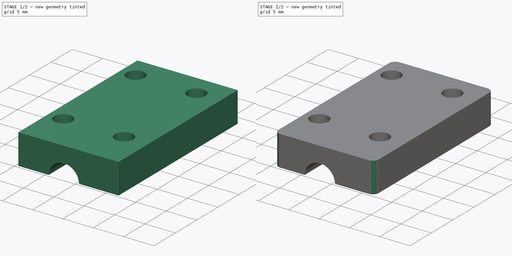
[diagram: build sequence overview — one tinted view per stage of 2, left to right]
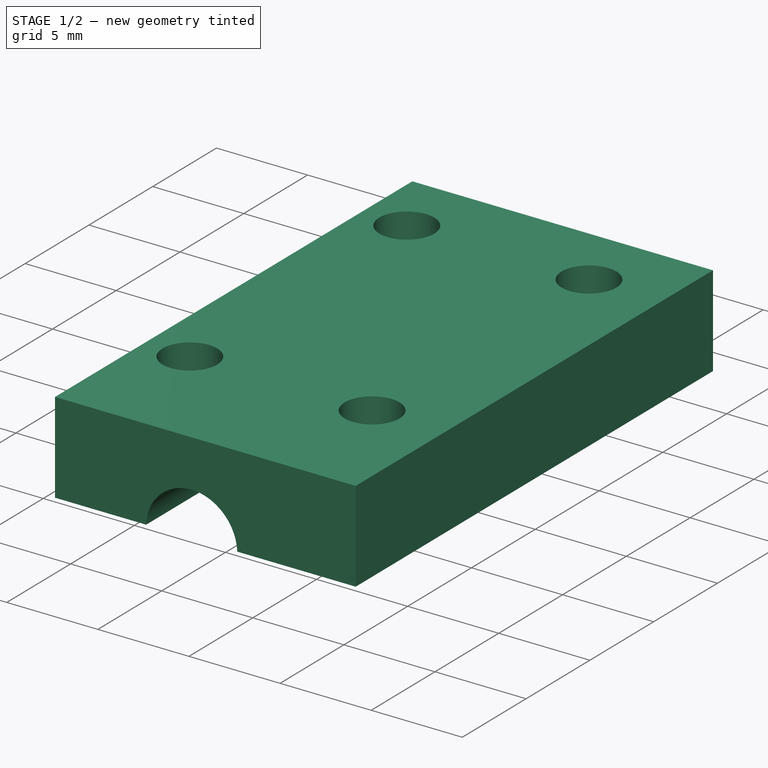
[diagram: stage 1 of 2 — iso view after this stage's code; geometry added in this stage tinted green]
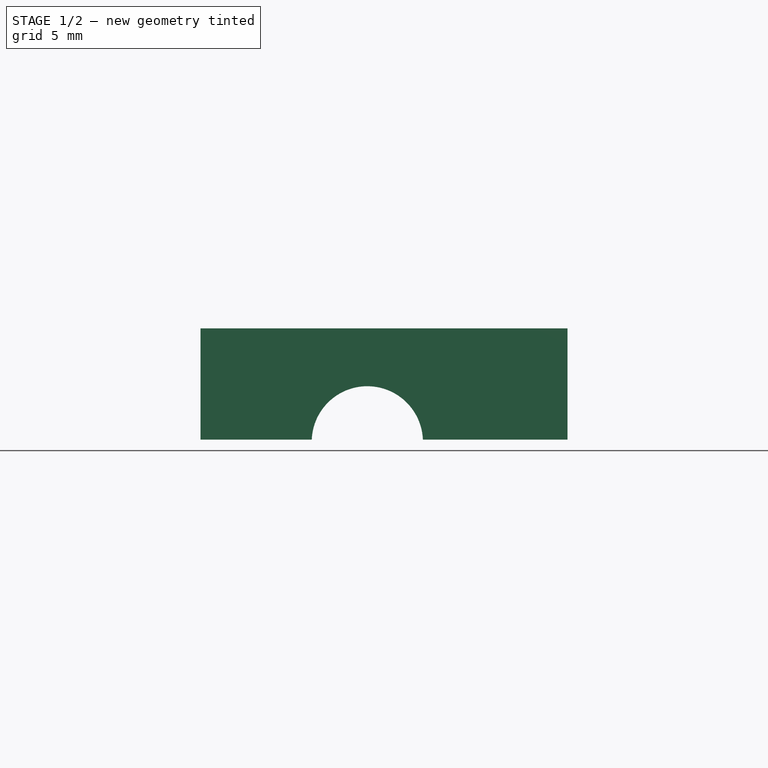
[diagram: stage 1 of 2 — front view after this stage's code; geometry added in this stage tinted green]
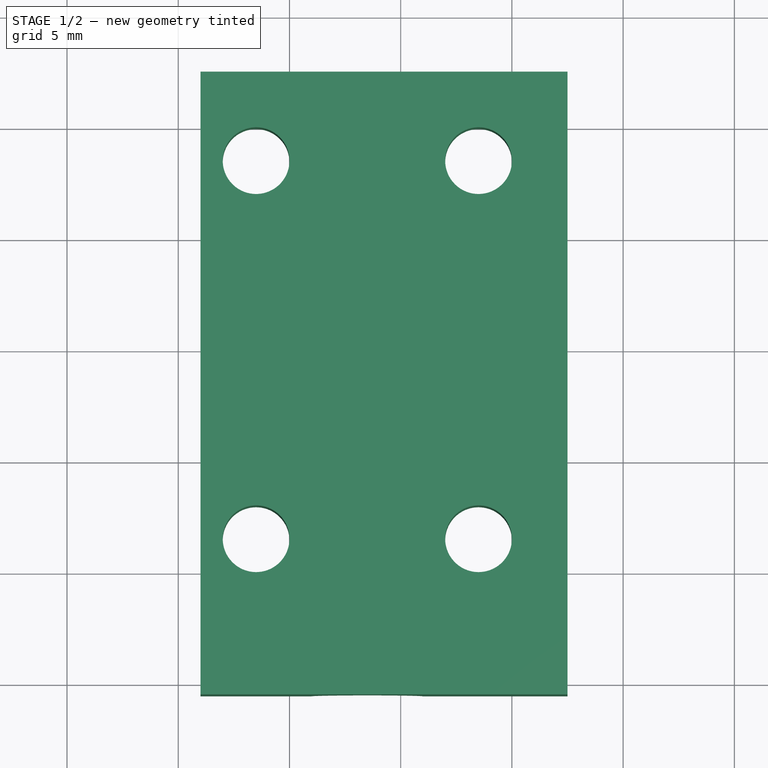
[diagram: stage 1 of 2 — top view after this stage's code; geometry added in this stage tinted green]
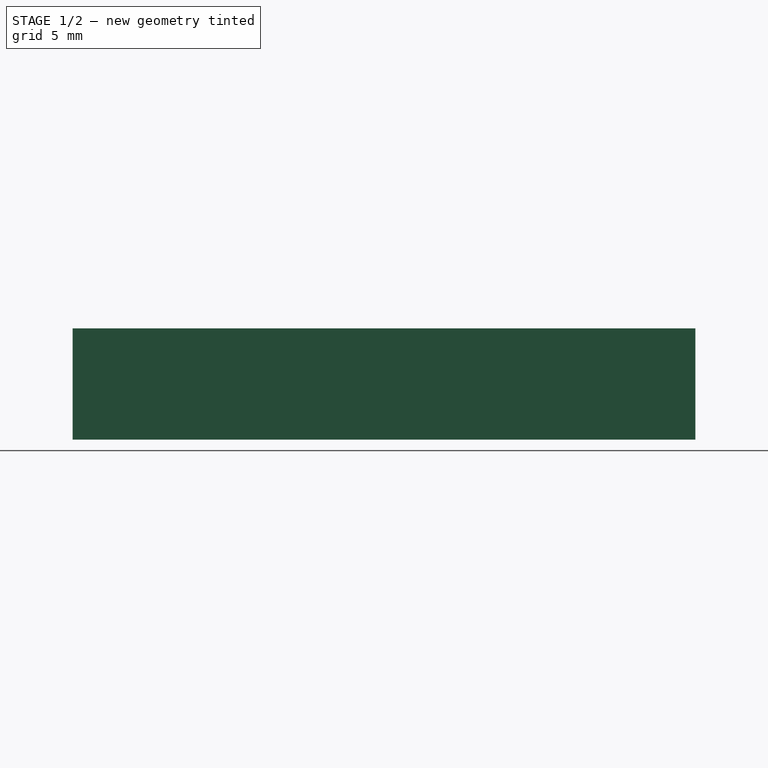
[diagram: stage 1 of 2 — right view after this stage's code; geometry added in this stage tinted green]
FCSTD DOCUMENT  (FreeCAD 0.19R24276 (Git))
Label: Servo_knife_opora_down_Axis_cover
License: All rights reserved
LicenseURL: http://en.wikipedia.org/wiki/All_rights_reserved
objects: Sketcher::SketchObject×2, PartDesign::Pad×1, PartDesign::Pocket×1, PartDesign::Fillet×1, PartDesign::Body×1
note: 9 computed .brp shape members not serialized (recipe doc carries the construction recipe); baked Part::Feature solids carry a one-line shape summary decoded from their .brp

FEATURE [Sketcher::SketchObject] Sketch001
  FullyConstrained = false
  MapMode = 5
  Placement = pos=(0,0,3) rot=(0,0,1;0rad)
  sketch-geometry (13):
    g0: LineSegment StartX=11 StartY=13.562 StartZ=0 EndX=16 EndY=13.562 EndZ=0
    g1: LineSegment StartX=16 StartY=13.562 StartZ=0 EndX=16 EndY=-15.8235 EndZ=0
    g2: LineSegment StartX=16 StartY=-15.8235 StartZ=0 EndX=11 EndY=-15.8235 EndZ=0
    g3: LineSegment StartX=11 StartY=-15.8235 StartZ=0 EndX=11 EndY=13.562 EndZ=0
    g4: LineSegment StartX=13.5 StartY=13.562 StartZ=0 EndX=13.5 EndY=-18.9488 EndZ=0
    g5: LineSegment StartX=6 StartY=12.5 StartZ=0 EndX=22.5 EndY=12.5 EndZ=0
    g6: LineSegment StartX=22.5 StartY=12.5 StartZ=0 EndX=22.5 EndY=-15.5 EndZ=0
    g7: LineSegment StartX=22.5 StartY=-15.5 StartZ=0 EndX=6 EndY=-15.5 EndZ=0
    g8: LineSegment StartX=6 StartY=-15.5 StartZ=0 EndX=6 EndY=12.5 EndZ=0
    g9: Circle CenterX=8.5 CenterY=8.5 CenterZ=0 NormalX=0 NormalY=0 NormalZ=1 AngleXU=0 Radius=1.5
    g10: Circle CenterX=18.5 CenterY=8.5 CenterZ=0 NormalX=0 NormalY=0 NormalZ=1 AngleXU=0 Radius=1.5
    g11: Circle CenterX=18.5 CenterY=-8.5 CenterZ=0 NormalX=0 NormalY=0 NormalZ=1 AngleXU=0 Radius=1.5
    g12: Circle CenterX=8.5 CenterY=-8.5 CenterZ=0 NormalX=0 NormalY=0 NormalZ=1 AngleXU=0 Radius=1.5
  constraints (36):
    c: Coincident(g0,g1)
    c: Coincident(g1,g2)
    c: Coincident(g2,g3)
    c: Coincident(g3,g0)
    c: Horizontal(g0)
    c: Horizontal(g2)
    c: Vertical(g1)
    c: Vertical(g3)
    c: Vertical(g4)
    c: Symmetric(g0,g0,g4)
    c: DistanceX(g0,g0) = 5
    c: DistanceX(g-1,g4) = 13.5
    c: Coincident(g5,g6)
    c: Coincident(g6,g7)
    c: Coincident(g7,g8)
    c: Coincident(g8,g5)
    c: Horizontal(g5)
    c: Horizontal(g7)
    c: Vertical(g6)
    c: Vertical(g8)
    c: DistanceX(g-1,g7) = 6
    c: DistanceX(g-1,g5) = 22.5
    c: DistanceY(g6,g6) = 28
    c: DistanceY(g-1,g5) = 12.5
    c: Horizontal(g12,g11)
    c: Horizontal(g9,g10)
    c: Vertical(g9,g12)
    c: Vertical(g10,g11)
    c: Equal(g9,g10)
    c: Equal(g10,g11)
    c: Equal(g11,g12)
    c: Diameter(g11) = 3
    c: DistanceX(g-1,g9) = 8.5
    c: DistanceX(g9,g10) = 10
    c: DistanceY(g9,g5) = 4
    c: DistanceY(g12,g9) = 17
FEATURE [PartDesign::Pad] Pad001
  Direction = (1,1,1)
  Length = 5
  Length2 = 100
  Placement = pos=(0,0,3) rot=(0,0,1;0rad)
  Profile = -> Sketch001
  Type = 0
FEATURE [Sketcher::SketchObject] Sketch
  FullyConstrained = true
  MapMode = 5
  Placement = pos=(0,-15.5,3) rot=(1,0,0;1.5708rad)
  Support = -> [Pad001]
  sketch-geometry (1):
    g0: Circle CenterX=13.5 CenterY=-0.1 CenterZ=0 NormalX=0 NormalY=0 NormalZ=1 AngleXU=0 Radius=2.5
  constraints (3):
    c: DistanceX(g-1,g0) = 13.5
    c: Diameter(g0) = 5
    c: DistanceY(g0,g-1) = 0.1
FEATURE [PartDesign::Pocket] Pocket
  BaseFeature = -> Pad001
  Length = 5
  Length2 = 100
  Placement = pos=(0,0,3) rot=(0,0,1;0rad)
  Profile = -> Sketch
  Type = 1
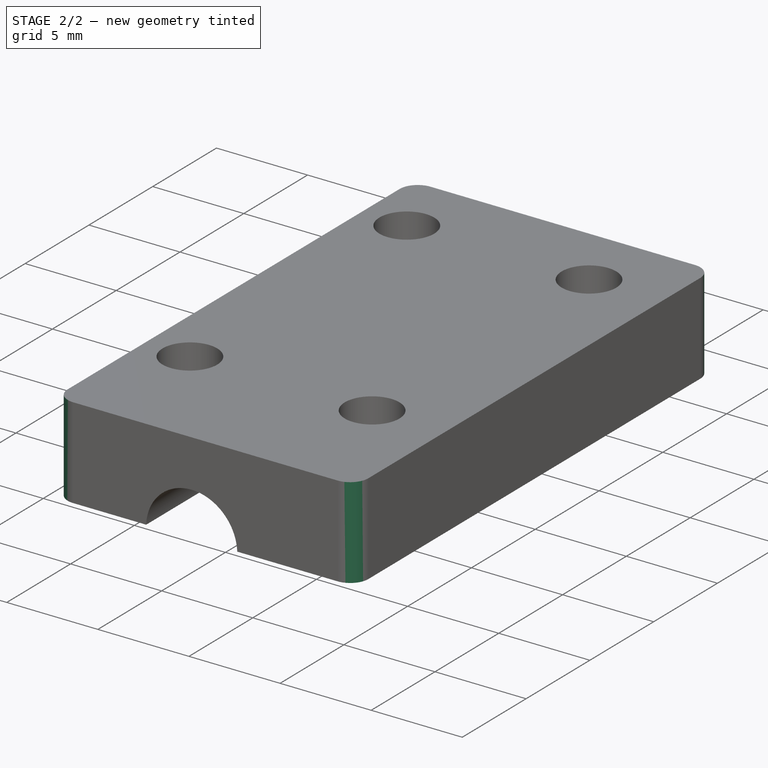
[diagram: stage 2 of 2 — iso view after this stage's code; geometry added in this stage tinted green]
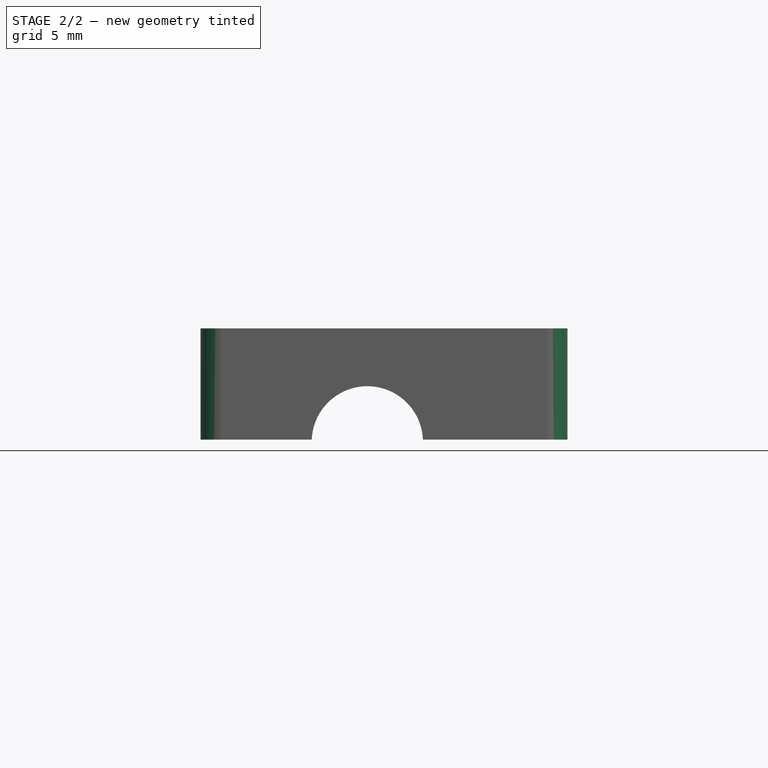
[diagram: stage 2 of 2 — front view after this stage's code; geometry added in this stage tinted green]
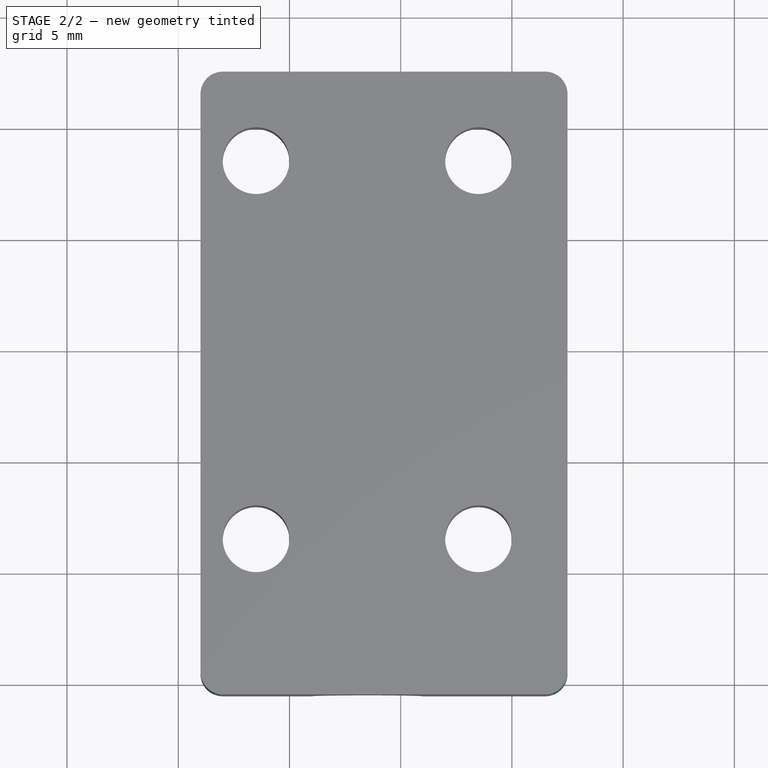
[diagram: stage 2 of 2 — top view after this stage's code; geometry added in this stage tinted green]
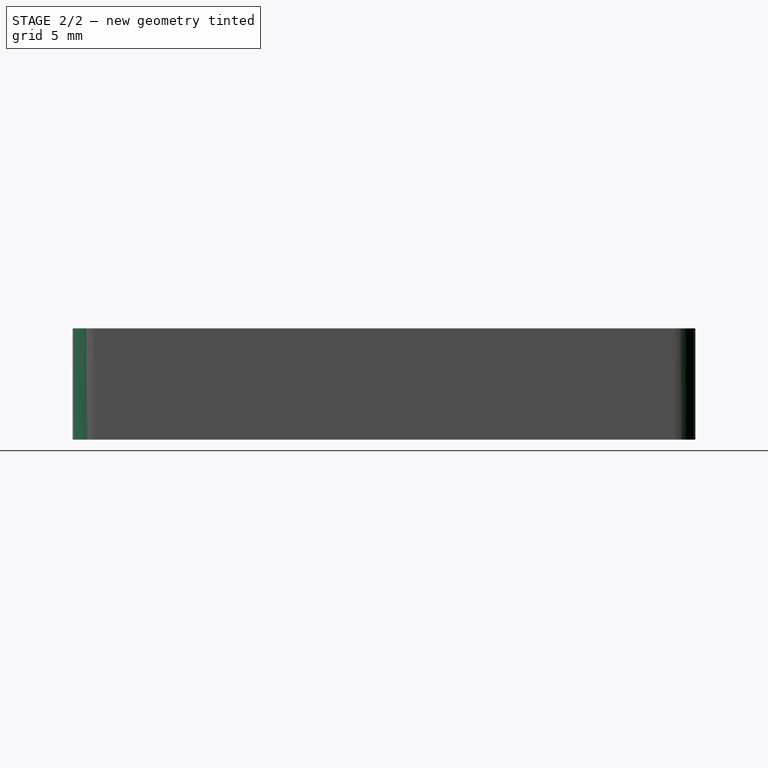
[diagram: stage 2 of 2 — right view after this stage's code; geometry added in this stage tinted green]
FEATURE [PartDesign::Fillet] Fillet
  Base = -> Pocket [Edge26,Edge18,Edge4,Edge6]
  BaseFeature = -> Pocket
  Placement = pos=(0,0,3) rot=(0,0,1;0rad)
  Radius = 1
  SupportTransform = false
FEATURE [PartDesign::Body] Body
  Group = -> [Sketch001,Pad001,Sketch,Pocket,Fillet]
  Origin = -> Origin
  Tip = -> Fillet
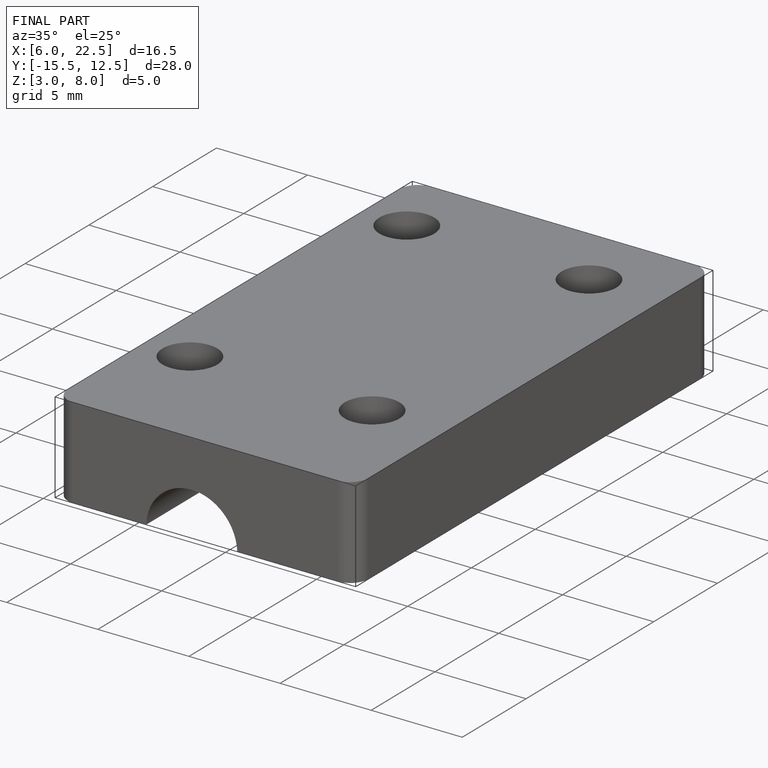
[diagram: finished part — iso view with bounding-box wireframe]
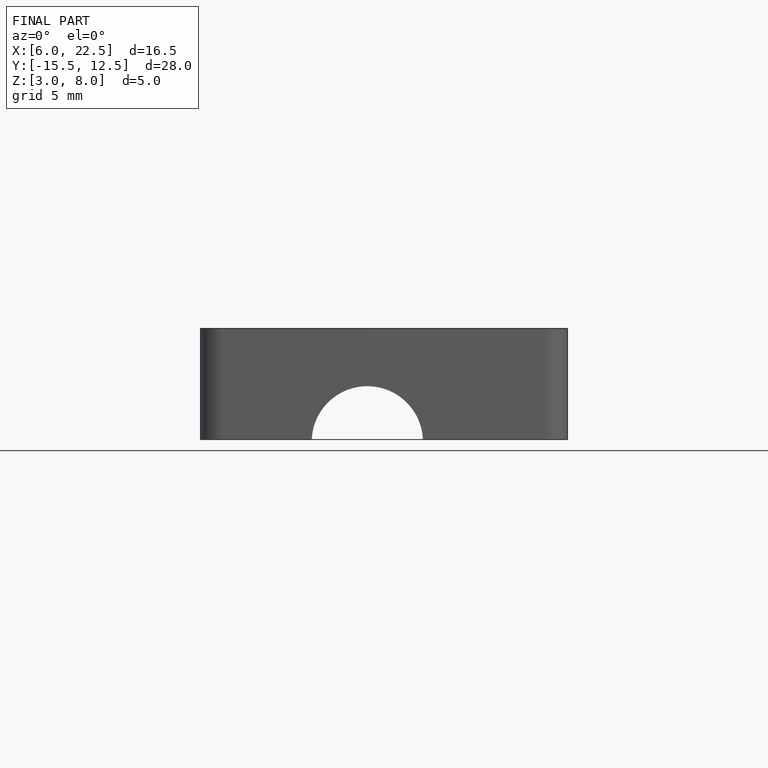
[diagram: finished part — front view with bounding-box wireframe]
